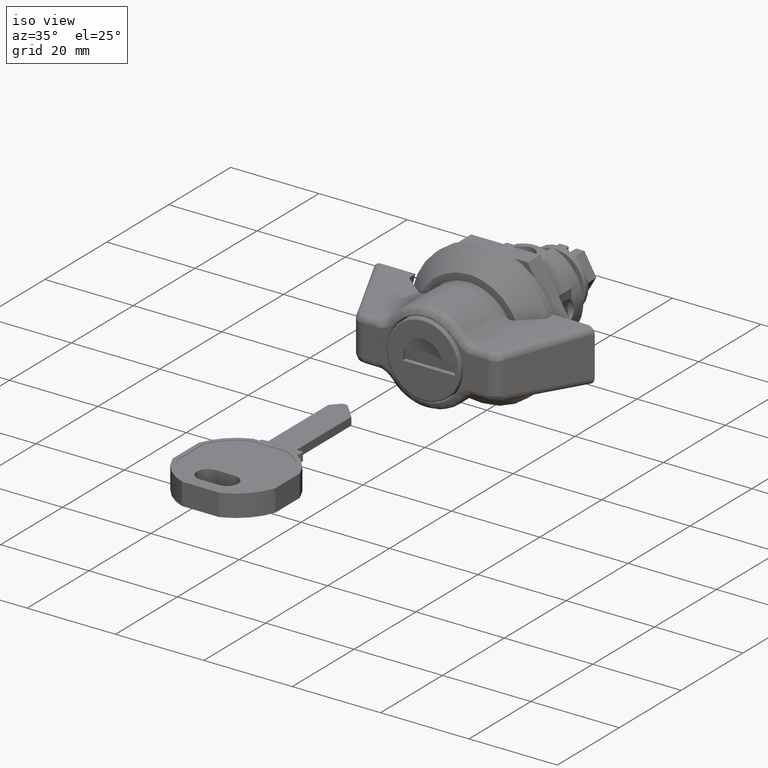
[diagram: clean part render]
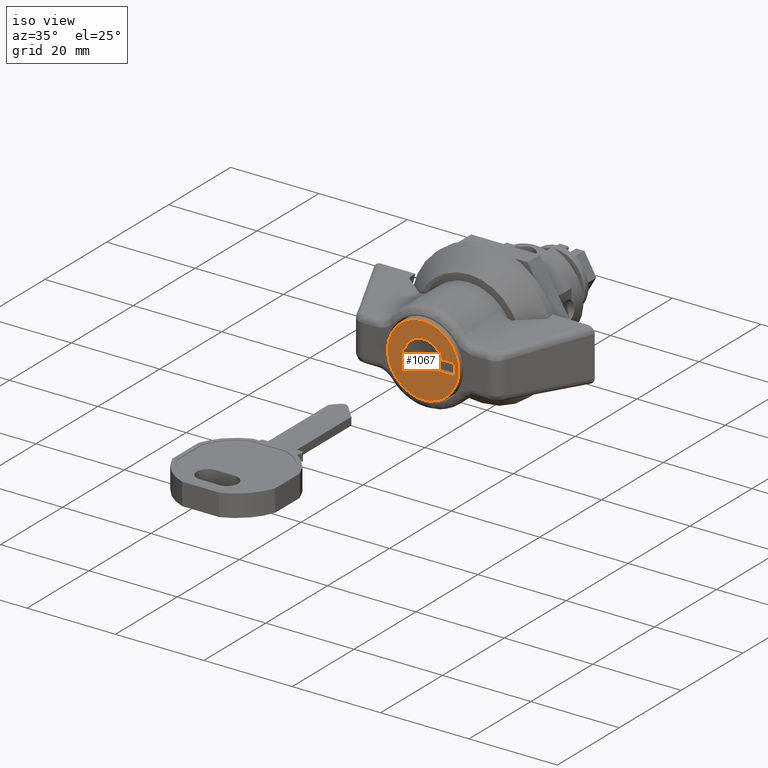
[diagram: same view with one face highlighted and labeled with its STEP entity id]
A machine part, iso view. The second image highlights one B-rep face of the part: STEP entity #1067.
In plain terms, the highlighted face is a freeform B-spline surface patch.
Its self-contained STEP definition (entity closure, byte-faithful):
#732=CARTESIAN_POINT('',(-20.550000594994302,8.030346390934849,0.561348671715349));
#733=VERTEX_POINT('',#732);
#734=CARTESIAN_POINT('',(-20.550000594986599,0.0,-8.049942536792971));
#735=VERTEX_POINT('',#734);
#736=CARTESIAN_POINT('',(-20.550000594994302,8.030346390934849,0.561348671715349));
#737=CARTESIAN_POINT('',(-20.550000594986603,8.049942536792971,0.281016377644852));
#738=CARTESIAN_POINT('',(-20.550000594986599,8.049942536792971,0.0));
#739=CARTESIAN_POINT('',(-20.550000594986599,8.049942536792971,-8.049942536792971));
#740=CARTESIAN_POINT('',(-20.550000594986599,0.0,-8.049942536792971));
#748=(BOUNDED_CURVE()B_SPLINE_CURVE(2,(#736,#737,#738,#739,#740),.UNSPECIFIED.,.F.,.U.)B_SPLINE_CURVE_WITH_KNOTS((3,2,3),(0.237833686499150,0.250000000000000,0.500000000000000),.UNSPECIFIED.)CURVE()GEOMETRIC_REPRESENTATION_ITEM()RATIONAL_B_SPLINE_CURVE((0.972879876310957,0.985746277110570,1.0,0.707106781186547,1.0))REPRESENTATION_ITEM(''));
#749=EDGE_CURVE('',#733,#735,#748,.T.);
#768=CARTESIAN_POINT('',(-20.550000594987079,-8.049306949703569,-0.101155899020460));
#769=VERTEX_POINT('',#768);
#783=CARTESIAN_POINT('',(-20.550000594986599,0.0,-8.049942536792971));
#784=CARTESIAN_POINT('',(-20.550000594986603,-7.949414290126557,-8.049942536792971));
#785=CARTESIAN_POINT('',(-20.550000594987075,-8.049306949703569,-0.101155899020460));
#793=(BOUNDED_CURVE()B_SPLINE_CURVE(2,(#783,#784,#785),.UNSPECIFIED.,.F.,.U.)B_SPLINE_CURVE_WITH_KNOTS((3,3),(0.500000000000000,0.747784295921178),.UNSPECIFIED.)CURVE()GEOMETRIC_REPRESENTATION_ITEM()RATIONAL_B_SPLINE_CURVE((1.0,0.709702639984884,0.994854295642747))REPRESENTATION_ITEM(''));
#794=EDGE_CURVE('',#735,#769,#793,.T.);
#822=CARTESIAN_POINT('',(-20.550000594986599,0.0,8.049942536792971));
#823=VERTEX_POINT('',#822);
#824=CARTESIAN_POINT('',(-20.550000594986599,0.0,8.049942536792971));
#825=CARTESIAN_POINT('',(-20.550000594986596,7.506868032363866,8.049942536792969));
#826=CARTESIAN_POINT('',(-20.550000594994302,8.030346390934849,0.561348671715349));
#834=(BOUNDED_CURVE()B_SPLINE_CURVE(2,(#824,#825,#826),.UNSPECIFIED.,.F.,.U.)B_SPLINE_CURVE_WITH_KNOTS((3,3),(0.0,0.237833686499150),.UNSPECIFIED.)CURVE()GEOMETRIC_REPRESENTATION_ITEM()RATIONAL_B_SPLINE_CURVE((1.0,0.721360504075977,0.972879876310957))REPRESENTATION_ITEM(''));
#835=EDGE_CURVE('',#823,#733,#834,.T.);
#837=CARTESIAN_POINT('',(-20.550000594987075,-8.049306949703569,-0.101155899020460));
#838=CARTESIAN_POINT('',(-20.550000594986599,-8.049942536792971,-0.050579946290575));
#839=CARTESIAN_POINT('',(-20.550000594986599,-8.049942536792971,0.0));
#840=CARTESIAN_POINT('',(-20.550000594986599,-8.049942536792971,8.049942536792971));
#841=CARTESIAN_POINT('',(-20.550000594986599,0.0,8.049942536792971));
#849=(BOUNDED_CURVE()B_SPLINE_CURVE(2,(#837,#838,#839,#840,#841),.UNSPECIFIED.,.F.,.U.)B_SPLINE_CURVE_WITH_KNOTS((3,2,3),(0.747784295921178,0.750000000000000,1.0),.UNSPECIFIED.)CURVE()GEOMETRIC_REPRESENTATION_ITEM()RATIONAL_B_SPLINE_CURVE((0.994854295642746,0.997404141201663,1.0,0.707106781186547,1.0))REPRESENTATION_ITEM(''));
#850=EDGE_CURVE('',#769,#823,#849,.T.);
#883=CARTESIAN_POINT('',(-20.550000594986599,4.218708533505575,1.250000059371786));
#884=VERTEX_POINT('',#883);
#885=CARTESIAN_POINT('',(-20.550000594986599,-4.218708533505575,1.250000059371786));
#886=VERTEX_POINT('',#885);
#887=CARTESIAN_POINT('',(-20.550000594986599,4.218708533505576,1.250000059371786));
#888=CARTESIAN_POINT('',(-20.550000594986599,3.285365937597296,4.400000208988885));
#889=CARTESIAN_POINT('',(-20.550000594986599,0.0,4.400000208988885));
#890=CARTESIAN_POINT('',(-20.550000594986599,-3.285365937597294,4.400000208988885));
#891=CARTESIAN_POINT('',(-20.550000594986599,-4.218708533505575,1.250000059371788));
#899=(BOUNDED_CURVE()B_SPLINE_CURVE(2,(#887,#888,#889,#890,#891),.UNSPECIFIED.,.F.,.U.)B_SPLINE_CURVE_WITH_KNOTS((3,2,3),(0.0,0.500000000000000,1.0),.UNSPECIFIED.)CURVE()GEOMETRIC_REPRESENTATION_ITEM()RATIONAL_B_SPLINE_CURVE((1.0,0.801277389263823,1.0,0.801277389263823,1.0))REPRESENTATION_ITEM(''));
#900=EDGE_CURVE('',#884,#886,#899,.T.);
#959=CARTESIAN_POINT('',(-20.550000594986599,4.650000220863209,-1.250000059371814));
#960=VERTEX_POINT('',#959);
#961=CARTESIAN_POINT('',(-20.550000594986550,-7.150000339606790,-1.250000059371814));
#962=VERTEX_POINT('',#961);
#963=CARTESIAN_POINT('',(-20.550000594986599,4.650000220863209,-1.250000059371814));
#964=CARTESIAN_POINT('',(-20.550000594986550,-7.150000339606790,-1.250000059371814));
#965=QUASI_UNIFORM_CURVE('',1,(#963,#964),.UNSPECIFIED.,.F.,.U.);
#966=EDGE_CURVE('',#960,#962,#965,.T.);
#987=CARTESIAN_POINT('',(-20.550000594986550,4.650000220863209,1.250000059371786));
#988=VERTEX_POINT('',#987);
#989=CARTESIAN_POINT('',(-20.550000594986550,4.650000220863209,1.250000059371786));
#990=CARTESIAN_POINT('',(-20.550000594986599,4.650000220863209,-1.250000059371814));
#991=QUASI_UNIFORM_CURVE('',1,(#989,#990),.UNSPECIFIED.,.F.,.U.);
#992=EDGE_CURVE('',#988,#960,#991,.T.);
#1009=CARTESIAN_POINT('',(-20.550000594986550,-7.150000339606790,1.250000059371786));
#1010=VERTEX_POINT('',#1009);
#1011=CARTESIAN_POINT('',(-20.550000594986550,-7.150000339606790,1.250000059371786));
#1012=CARTESIAN_POINT('',(-20.550000594986599,-4.218708533505575,1.250000059371786));
#1013=QUASI_UNIFORM_CURVE('',1,(#1011,#1012),.UNSPECIFIED.,.F.,.U.);
#1014=EDGE_CURVE('',#1010,#886,#1013,.T.);
#1017=CARTESIAN_POINT('',(-20.550000594986599,4.218708533505575,1.250000059371786));
#1018=CARTESIAN_POINT('',(-20.550000594986550,4.650000220863209,1.250000059371786));
#1019=QUASI_UNIFORM_CURVE('',1,(#1017,#1018),.UNSPECIFIED.,.F.,.U.);
#1020=EDGE_CURVE('',#884,#988,#1019,.T.);
#1037=CARTESIAN_POINT('',(-20.550000594986550,-7.150000339606790,-1.250000059371814));
#1038=CARTESIAN_POINT('',(-20.550000594986550,-7.150000339606790,1.250000059371786));
#1039=QUASI_UNIFORM_CURVE('',1,(#1037,#1038),.UNSPECIFIED.,.F.,.U.);
#1040=EDGE_CURVE('',#962,#1010,#1039,.T.);
#1048=CARTESIAN_POINT('',(-20.550000594986599,-8.853418577982085,8.854132218416494));
#1049=CARTESIAN_POINT('',(-20.550000594986599,-8.853418577982085,-8.854132218416490));
#1050=CARTESIAN_POINT('',(-20.550000594986599,8.853136631511758,8.854132218416494));
#1051=CARTESIAN_POINT('',(-20.550000594986599,8.853136631511758,-8.854132218416488));
#1052=B_SPLINE_SURFACE_WITH_KNOTS('',1,1,((#1048,#1050),(#1049,#1051)),.UNSPECIFIED.,.F.,.F.,.U.,(2,2),(2,2),(0.0,17.708264436832980),(0.0,17.706555209493839),.UNSPECIFIED.);
#1053=ORIENTED_EDGE('',*,*,#835,.T.);
#1054=ORIENTED_EDGE('',*,*,#749,.T.);
#1055=ORIENTED_EDGE('',*,*,#794,.T.);
#1056=ORIENTED_EDGE('',*,*,#850,.T.);
#1057=EDGE_LOOP('',(#1053,#1054,#1055,#1056));
#1058=FACE_OUTER_BOUND('',#1057,.T.);
#1059=ORIENTED_EDGE('',*,*,#1020,.F.);
#1060=ORIENTED_EDGE('',*,*,#900,.T.);
#1061=ORIENTED_EDGE('',*,*,#1014,.F.);
#1062=ORIENTED_EDGE('',*,*,#1040,.F.);
#1063=ORIENTED_EDGE('',*,*,#966,.F.);
#1064=ORIENTED_EDGE('',*,*,#992,.F.);
#1065=EDGE_LOOP('',(#1059,#1060,#1061,#1062,#1063,#1064));
#1066=FACE_BOUND('',#1065,.T.);
#1067=ADVANCED_FACE('',(#1058,#1066),#1052,.F.);